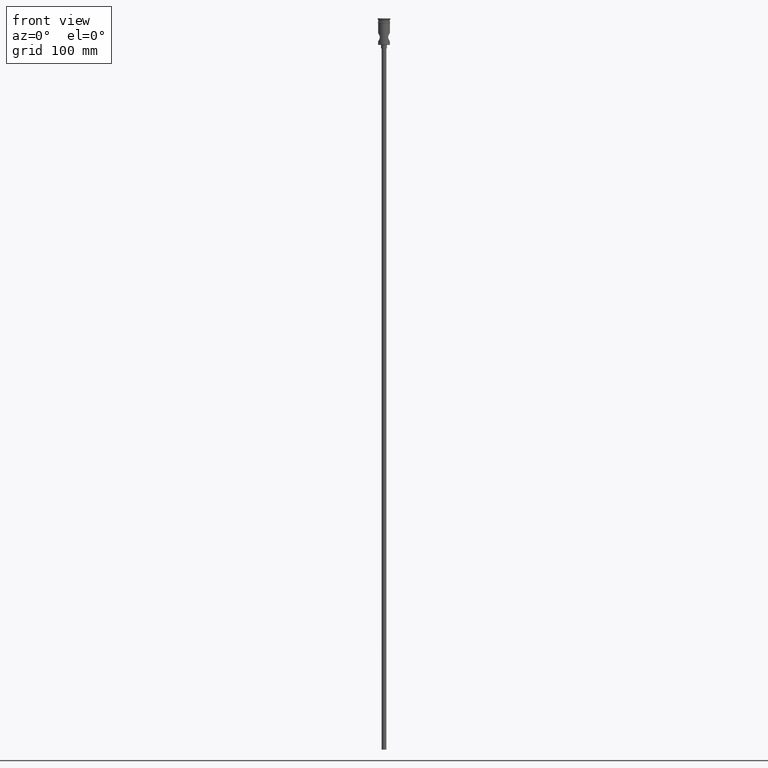
[diagram: clean part render]
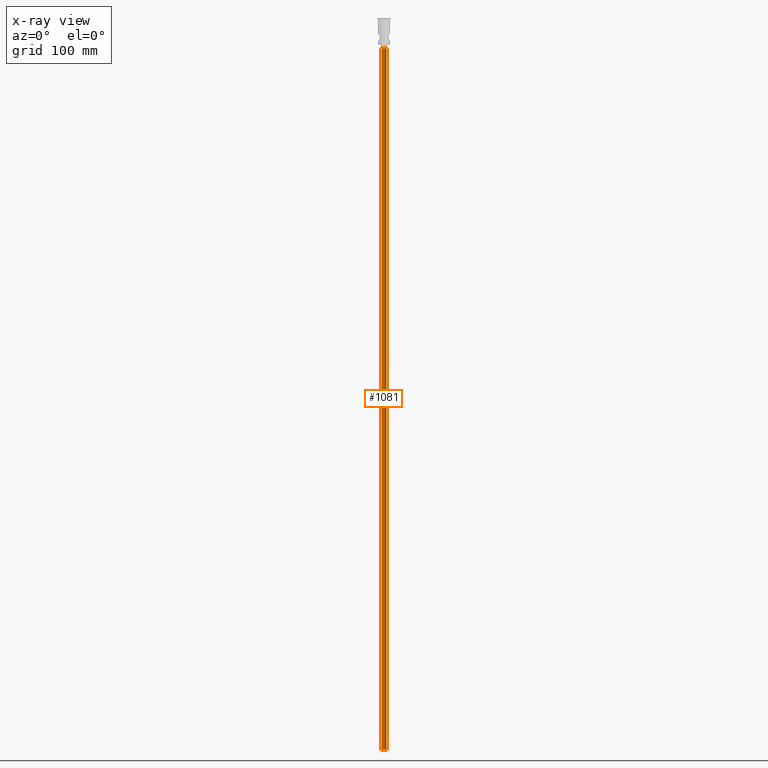
[diagram: x-ray — body ghosted, one internal face saturated and labeled with its STEP entity id]
A machine part, front view, then the same camera in x-ray: the body is ghosted and one INTERNAL B-rep face — a face not visible from any outside direction — is saturated and labeled: STEP entity #1081.
In plain terms, the highlighted cylindrical surface (edge-blend (fillet) strip) has radius 2 mm, axis along (-0, -0, 1).
Its self-contained STEP definition (entity closure, byte-faithful):
#6 = ORIENTED_EDGE ( 'NONE', *, *, #1007, .T. ) ;
#10 = CIRCLE ( 'NONE', #1399, 2.000000000000000000 ) ;
#51 = EDGE_CURVE ( 'NONE', #141, #379, #10, .T. ) ;
#58 = CARTESIAN_POINT ( 'NONE',  ( 2.000000000000000000, 0.000000000000000000, -25.50000000000000000 ) ) ;
#78 = DIRECTION ( 'NONE',  ( -0.000000000000000000, -0.000000000000000000, 1.000000000000000000 ) ) ;
#100 = EDGE_CURVE ( 'NONE', #379, #491, #1415, .T. ) ;
#141 = VERTEX_POINT ( 'NONE', #198 ) ;
#142 = ORIENTED_EDGE ( 'NONE', *, *, #51, .F. ) ;
#160 = EDGE_LOOP ( 'NONE', ( #142, #6, #477, #854 ) ) ;
#179 = VECTOR ( 'NONE', #292, 1000.000000000000000 ) ;
#198 = CARTESIAN_POINT ( 'NONE',  ( -2.000000000000000000, 2.449293598294706414E-16, -622.4999999999998863 ) ) ;
#277 = CARTESIAN_POINT ( 'NONE',  ( -2.000000000000000000, 2.449293598294706414E-16, -25.50000000000000000 ) ) ;
#292 = DIRECTION ( 'NONE',  ( -0.000000000000000000, -0.000000000000000000, 1.000000000000000000 ) ) ;
#296 = AXIS2_PLACEMENT_3D ( 'NONE', #620, #1055, #840 ) ;
#303 = CYLINDRICAL_SURFACE ( 'NONE', #834, 2.000000000000000000 ) ;
#354 = EDGE_CURVE ( 'NONE', #404, #491, #743, .T. ) ;
#379 = VERTEX_POINT ( 'NONE', #941 ) ;
#404 = VERTEX_POINT ( 'NONE', #277 ) ;
#477 = ORIENTED_EDGE ( 'NONE', *, *, #354, .T. ) ;
#491 = VERTEX_POINT ( 'NONE', #58 ) ;
#529 = DIRECTION ( 'NONE',  ( 0.000000000000000000, 0.000000000000000000, -1.000000000000000000 ) ) ;
#576 = LINE ( 'NONE', #1309, #791 ) ;
#610 = DIRECTION ( 'NONE',  ( -0.000000000000000000, -0.000000000000000000, 1.000000000000000000 ) ) ;
#620 = CARTESIAN_POINT ( 'NONE',  ( 0.000000000000000000, 0.000000000000000000, -25.50000000000000000 ) ) ;
#743 = CIRCLE ( 'NONE', #296, 2.000000000000000000 ) ;
#751 = DIRECTION ( 'NONE',  ( -1.000000000000000000, 0.000000000000000000, 0.000000000000000000 ) ) ;
#791 = VECTOR ( 'NONE', #610, 1000.000000000000000 ) ;
#834 = AXIS2_PLACEMENT_3D ( 'NONE', #1163, #78, #1282 ) ;
#840 = DIRECTION ( 'NONE',  ( -1.000000000000000000, 0.000000000000000000, 0.000000000000000000 ) ) ;
#854 = ORIENTED_EDGE ( 'NONE', *, *, #100, .F. ) ;
#941 = CARTESIAN_POINT ( 'NONE',  ( 2.000000000000000000, 0.000000000000000000, -622.4999999999998863 ) ) ;
#1007 = EDGE_CURVE ( 'NONE', #141, #404, #576, .T. ) ;
#1055 = DIRECTION ( 'NONE',  ( 0.000000000000000000, 0.000000000000000000, -1.000000000000000000 ) ) ;
#1069 = CARTESIAN_POINT ( 'NONE',  ( 0.000000000000000000, 0.000000000000000000, -622.4999999999998863 ) ) ;
#1081 = ADVANCED_FACE ( 'NONE', ( #1413 ), #303, .T. ) ;
#1163 = CARTESIAN_POINT ( 'NONE',  ( 0.000000000000000000, 0.000000000000000000, -622.4999999999998863 ) ) ;
#1282 = DIRECTION ( 'NONE',  ( 1.000000000000000000, 0.000000000000000000, 0.000000000000000000 ) ) ;
#1299 = CARTESIAN_POINT ( 'NONE',  ( 2.000000000000000000, 0.000000000000000000, -622.4999999999998863 ) ) ;
#1309 = CARTESIAN_POINT ( 'NONE',  ( -2.000000000000000000, 2.449293598294706414E-16, -622.4999999999998863 ) ) ;
#1399 = AXIS2_PLACEMENT_3D ( 'NONE', #1069, #529, #751 ) ;
#1413 = FACE_OUTER_BOUND ( 'NONE', #160, .T. ) ;
#1415 = LINE ( 'NONE', #1299, #179 ) ;